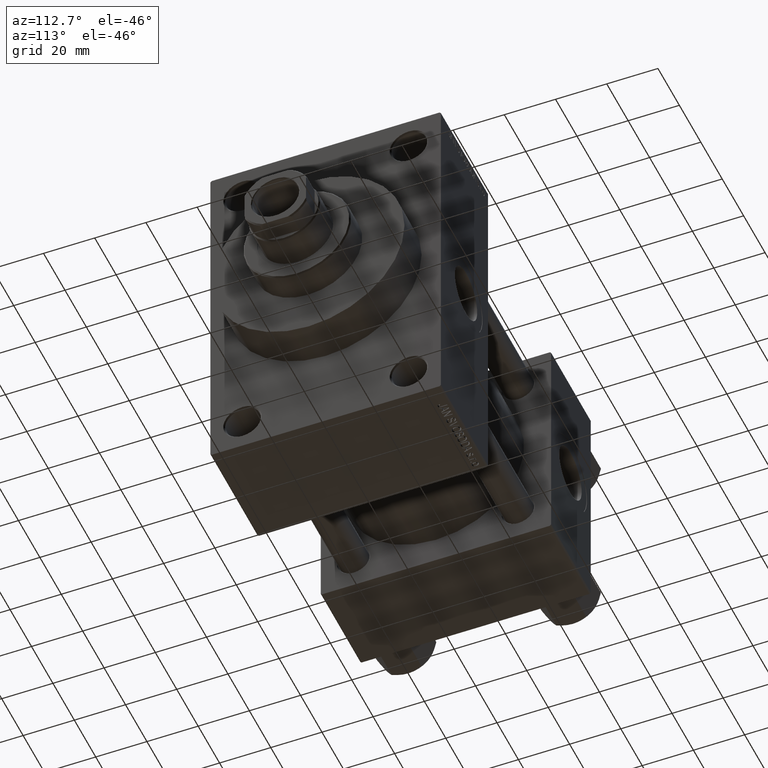
[diagram: clean part render]
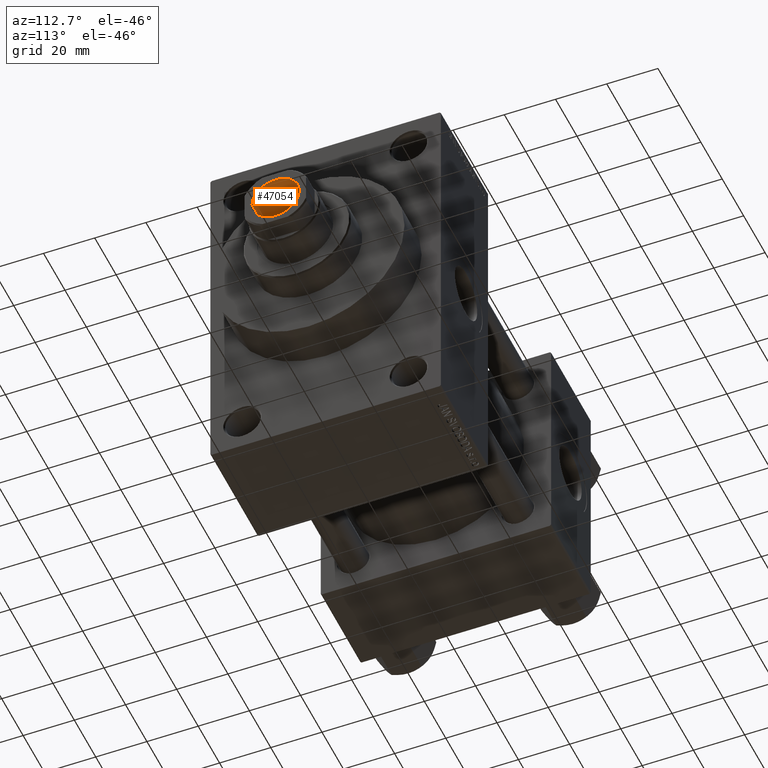
[diagram: same view with one face highlighted and labeled with its STEP entity id]
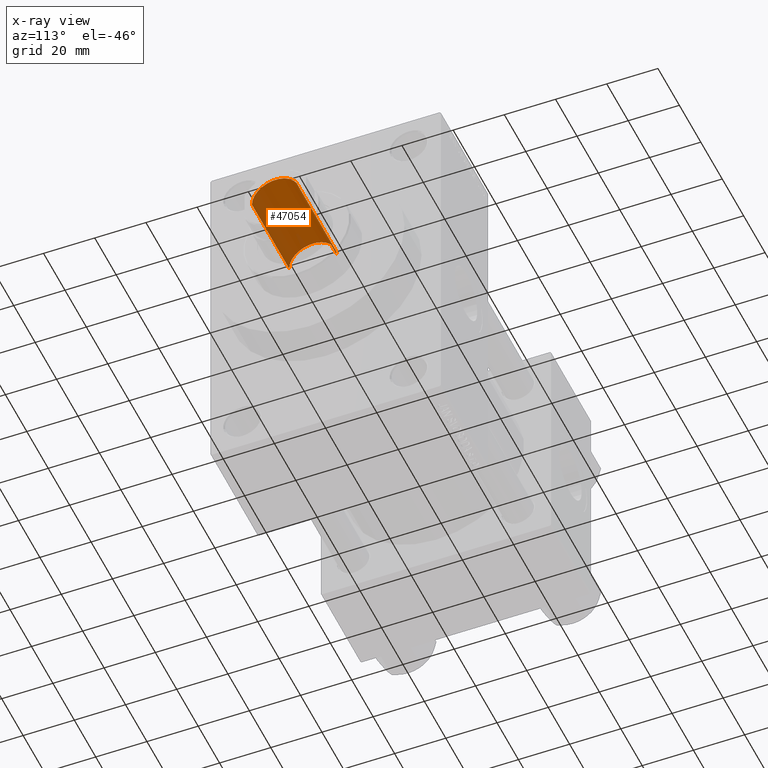
[diagram: x-ray of the same camera — body ghosted, the highlighted face saturated]
A machine part, auxiliary view. The second image highlights one B-rep face of the part: STEP entity #47054.
The next image is the same camera in x-ray: the body ghosted, the highlighted face saturated — about 2% of this face is hidden behind the body in this view.
In plain terms, the highlighted cylindrical surface (edge-blend (fillet) strip) has radius 9.25 mm, axis along (1, 0, 0).
Its self-contained STEP definition (entity closure, byte-faithful):
#721 = VERTEX_POINT ( 'NONE', #37258 ) ;
#3547 = DIRECTION ( 'NONE',  ( 0.000000000000000000, 0.000000000000000000, 1.000000000000000000 ) ) ;
#4067 = DIRECTION ( 'NONE',  ( -0.000000000000000000, -0.000000000000000000, 1.000000000000000000 ) ) ;
#4258 = AXIS2_PLACEMENT_3D ( 'NONE', #45829, #3547, #14546 ) ;
#4435 = DIRECTION ( 'NONE',  ( -0.000000000000000000, -0.000000000000000000, 1.000000000000000000 ) ) ;
#4963 = ORIENTED_EDGE ( 'NONE', *, *, #8530, .F. ) ;
#8530 = EDGE_CURVE ( 'NONE', #17484, #43689, #34057, .T. ) ;
#9370 = AXIS2_PLACEMENT_3D ( 'NONE', #41215, #4435, #29538 ) ;
#11949 = LINE ( 'NONE', #26060, #19885 ) ;
#12982 = DIRECTION ( 'NONE',  ( 1.000000000000000000, 0.000000000000000000, 0.000000000000000000 ) ) ;
#13460 = AXIS2_PLACEMENT_3D ( 'NONE', #19917, #23735, #12982 ) ;
#13549 = LINE ( 'NONE', #34813, #15780 ) ;
#14546 = DIRECTION ( 'NONE',  ( 1.000000000000000000, 0.000000000000000000, 0.000000000000000000 ) ) ;
#15424 = FACE_OUTER_BOUND ( 'NONE', #45863, .T. ) ;
#15780 = VECTOR ( 'NONE', #38630, 1000.000000000000000 ) ;
#17484 = VERTEX_POINT ( 'NONE', #17757 ) ;
#17757 = CARTESIAN_POINT ( 'NONE',  ( -9.249999999999992895, 1.132798289211300712E-15, 114.9999999999999858 ) ) ;
#17840 = CARTESIAN_POINT ( 'NONE',  ( -9.249999999999994671, 1.132798289211300909E-15, 149.6999999999999886 ) ) ;
#19885 = VECTOR ( 'NONE', #4067, 1000.000000000000000 ) ;
#19917 = CARTESIAN_POINT ( 'NONE',  ( 0.000000000000000000, 0.000000000000000000, 114.9999999999999858 ) ) ;
#21191 = EDGE_CURVE ( 'NONE', #43689, #721, #11949, .T. ) ;
#23735 = DIRECTION ( 'NONE',  ( -0.000000000000000000, -0.000000000000000000, 1.000000000000000000 ) ) ;
#24848 = CIRCLE ( 'NONE', #4258, 9.249999999999994671 ) ;
#26060 = CARTESIAN_POINT ( 'NONE',  ( 9.249999999999994671, 0.000000000000000000, 150.0000000000000000 ) ) ;
#26552 = VERTEX_POINT ( 'NONE', #17840 ) ;
#27201 = ORIENTED_EDGE ( 'NONE', *, *, #38183, .T. ) ;
#29538 = DIRECTION ( 'NONE',  ( 1.000000000000000000, 0.000000000000000000, 0.000000000000000000 ) ) ;
#29773 = CARTESIAN_POINT ( 'NONE',  ( 9.249999999999992895, 0.000000000000000000, 114.9999999999999858 ) ) ;
#30471 = CYLINDRICAL_SURFACE ( 'NONE', #9370, 9.249999999999994671 ) ;
#32136 = ORIENTED_EDGE ( 'NONE', *, *, #21191, .F. ) ;
#34057 = CIRCLE ( 'NONE', #13460, 9.249999999999992895 ) ;
#34813 = CARTESIAN_POINT ( 'NONE',  ( -9.249999999999994671, 1.132798289211300909E-15, 150.0000000000000000 ) ) ;
#36331 = ORIENTED_EDGE ( 'NONE', *, *, #44531, .T. ) ;
#37258 = CARTESIAN_POINT ( 'NONE',  ( 9.249999999999994671, 0.000000000000000000, 149.6999999999999886 ) ) ;
#38183 = EDGE_CURVE ( 'NONE', #26552, #721, #24848, .T. ) ;
#38630 = DIRECTION ( 'NONE',  ( -0.000000000000000000, -0.000000000000000000, 1.000000000000000000 ) ) ;
#41215 = CARTESIAN_POINT ( 'NONE',  ( 0.000000000000000000, 0.000000000000000000, 150.0000000000000000 ) ) ;
#43689 = VERTEX_POINT ( 'NONE', #29773 ) ;
#44531 = EDGE_CURVE ( 'NONE', #17484, #26552, #13549, .T. ) ;
#45829 = CARTESIAN_POINT ( 'NONE',  ( 0.000000000000000000, 0.000000000000000000, 149.6999999999999886 ) ) ;
#45863 = EDGE_LOOP ( 'NONE', ( #4963, #36331, #27201, #32136 ) ) ;
#47054 = ADVANCED_FACE ( 'NONE', ( #15424 ), #30471, .F. ) ;